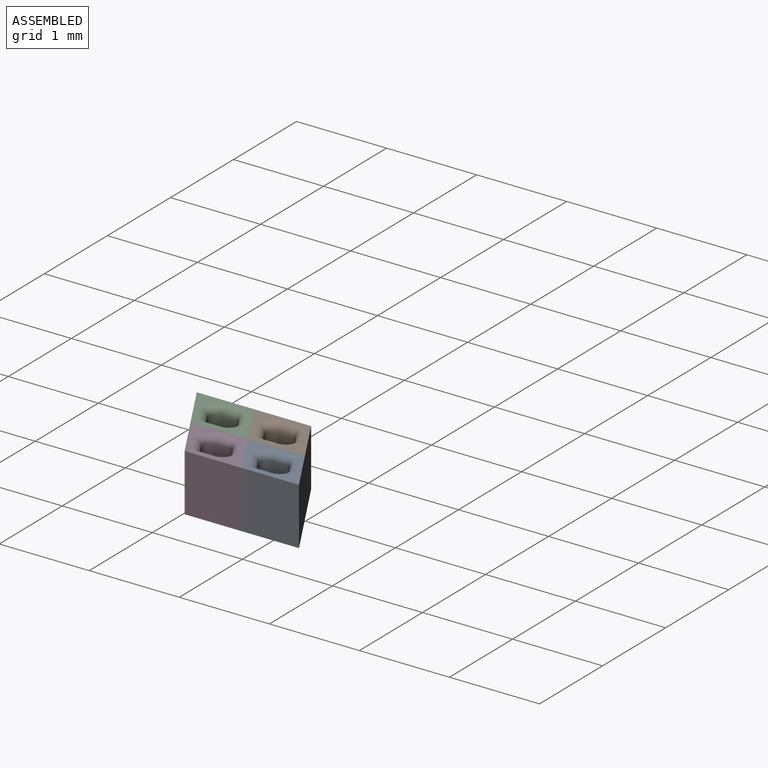
[diagram: assembled view]
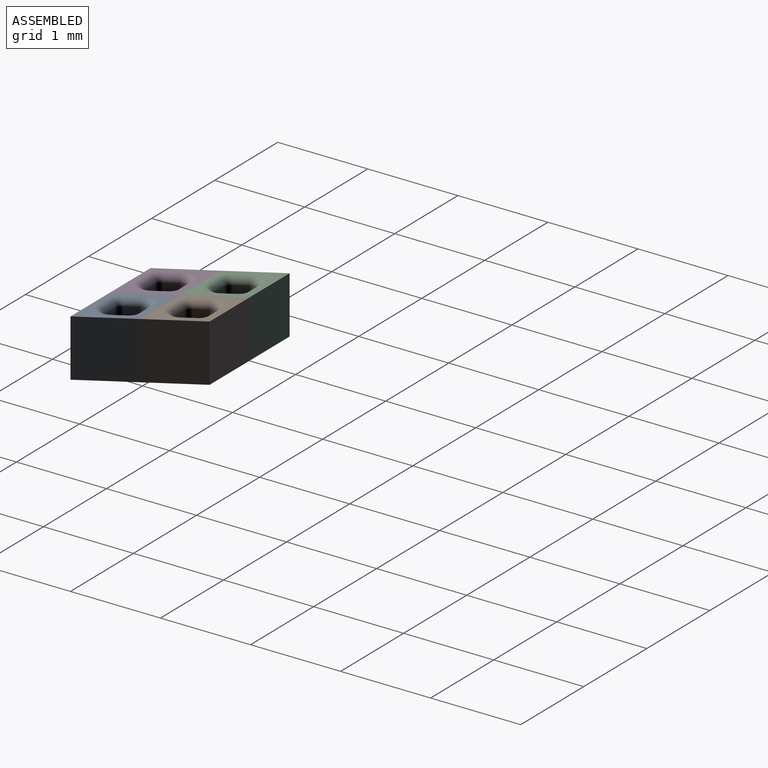
[diagram: assembled view, second angle]
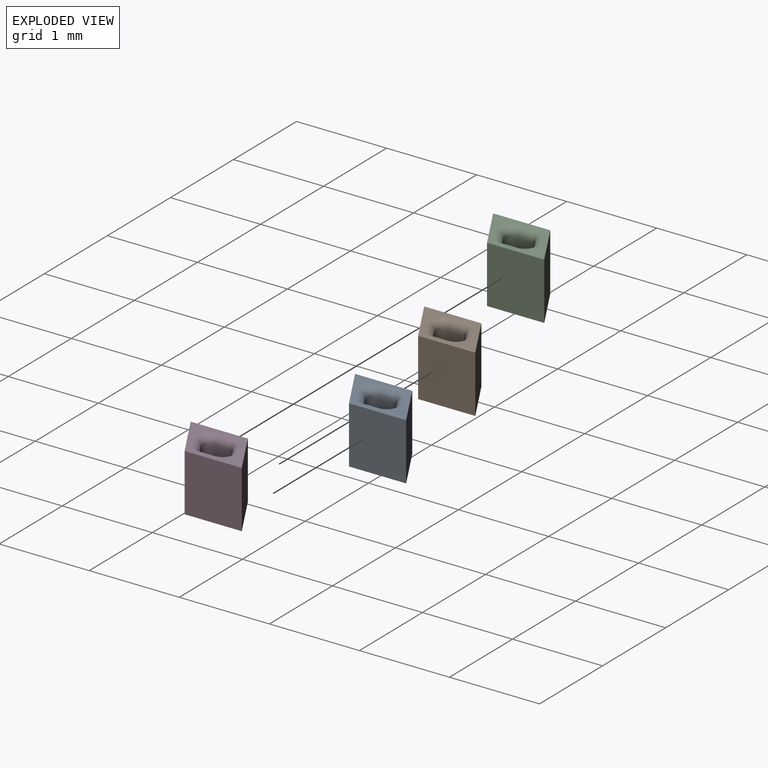
[diagram: exploded view]
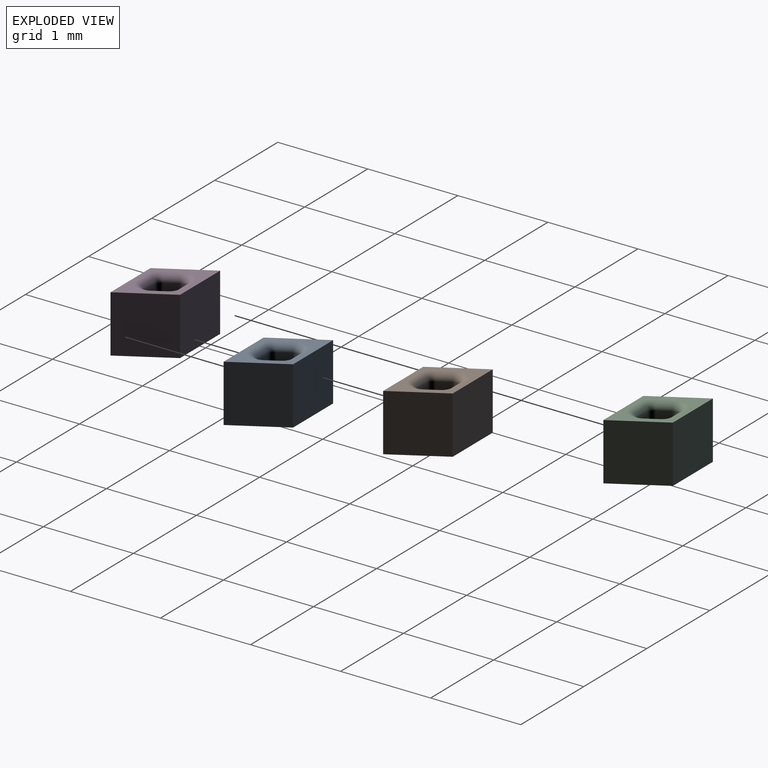
[diagram: exploded view, second angle]
ASSEMBLY  parts=4 mates=3
PART A: 30 faces, bbox 1x0.6x0.6 mm
  f0: plane 0.95x0.55mm, normal (0,0,1), area 0.1mm2, adj f5,f6,f7,f8,f11,f13,f14,f19
  f1: plane 0.95x0.55mm, normal (0,0,-1), area 0.1mm2, adj f5,f6,f7,f8,f12,f16,f17,f21
  f2: plane 0.48x0.16mm, normal (0,1,0), area 0.1mm2, adj f18,f23,f26,f29
  f3: plane 0.48x0.14mm, normal (0.87,0.5,0), area 0.1mm2, adj f15,f24,f25,f29
  f4: plane 0.48x0.16mm, normal (0,-1,0), area 0.1mm2, adj f10,f14,f15,f16
  f5: plane 0.64x0.55mm, normal (-0.87,-0.5,0), area 0.4mm2, adj f0,f1,f6,f8
  f6: plane 0.64x0.64mm, normal (0,-1,0), area 0.4mm2, adj f0,f1,f5,f7
  f7: plane 0.64x0.55mm, normal (0.87,0.5,0), area 0.4mm2, adj f0,f1,f6,f8
  f8: plane 0.64x0.64mm, normal (0,1,0), area 0.4mm2, adj f0,f1,f5,f7
  f9: plane 0.48x0.14mm, normal (-0.87,-0.5,0), area 0.1mm2, adj f10,f13,f17,f18
  f10: cylinder r=0.08mm len=0.48mm, axis (0,0,-1), area 0mm2, adj f4,f9,f11,f12
  f11: torus R=0.16mm, axis (0,0,1), area 0mm2, adj f0,f10,f13,f14
  f12: torus R=0.16mm, axis (0,0,1), area 0mm2, adj f1,f10,f16,f17
  f13: cylinder r=0.08mm len=0.18mm, axis (-0.5,0.87,0), area 0mm2, adj f0,f9,f11,f19
  f14: cylinder r=0.08mm len=0.16mm, axis (-1,0,0), area 0mm2, adj f0,f4,f11,f20
  f15: cylinder r=0.08mm len=0.48mm, axis (0,0,1), area 0.1mm2, adj f3,f4,f20,f21
  f16: cylinder r=0.08mm len=0.16mm, axis (1,0,0), area 0mm2, adj f1,f4,f12,f21
  f17: cylinder r=0.08mm len=0.18mm, axis (0.5,-0.87,0), area 0mm2, adj f1,f9,f12,f22
  f18: cylinder r=0.08mm len=0.48mm, axis (0,0,1), area 0.1mm2, adj f2,f9,f19,f22
  f19: torus R=0.16mm, axis (0,0,1), area 0mm2, adj f0,f13,f18,f23
  f20: torus R=0.16mm, axis (0,0,1), area 0mm2, adj f0,f14,f15,f24
  f21: torus R=0.16mm, axis (0,0,1), area 0mm2, adj f1,f15,f16,f25
  f22: torus R=0.16mm, axis (0,0,1), area 0mm2, adj f1,f17,f18,f26
  f23: cylinder r=0.08mm len=0.16mm, axis (1,0,0), area 0mm2, adj f0,f2,f19,f27
  f24: cylinder r=0.08mm len=0.18mm, axis (0.5,-0.87,0), area 0mm2, adj f0,f3,f20,f27
  f25: cylinder r=0.08mm len=0.18mm, axis (-0.5,0.87,0), area 0mm2, adj f1,f3,f21,f28
  f26: cylinder r=0.08mm len=0.16mm, axis (-1,0,0), area 0mm2, adj f1,f2,f22,f28
  f27: torus R=0.16mm, axis (0,0,1), area 0mm2, adj f0,f23,f24,f29
  f28: torus R=0.16mm, axis (0,0,1), area 0mm2, adj f1,f25,f26,f29
  f29: cylinder r=0.08mm len=0.48mm, axis (0,0,-1), area 0mm2, adj f2,f3,f27,f28
PART B: same geometry as A
PART C: same geometry as A
PART D: same geometry as A
PLACE A rot(axis=(-0.5,-0.87,0),180deg) t=(-4.23,-1.44,1.29)mm
PLACE B t=(-4.55,-0.89,0.65)mm
PLACE C rot(axis=(0,0,1),180deg) t=(-5.02,-0.6,0.65)mm
PLACE D rot(axis=(0,0,-1),0deg) t=(-4.87,-1.44,0.65)mm
MATE fastened D.f7 <-> A.f6  axis (0.87,0.5,0) through (-4.47,-1.3,0.97)mm
MATE fastened A.f7 <-> B.f6  axis (0,1,0) through (-4.31,-1.02,0.97)mm
MATE fastened C.f8 <-> D.f8  axis (0,-1,0) through (-4.94,-1.02,0.97)mm
